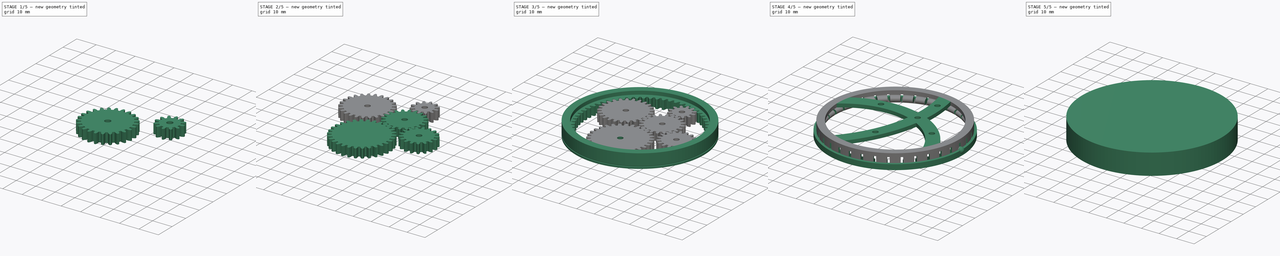
[diagram: build sequence overview — one tinted view per stage of 5, left to right]
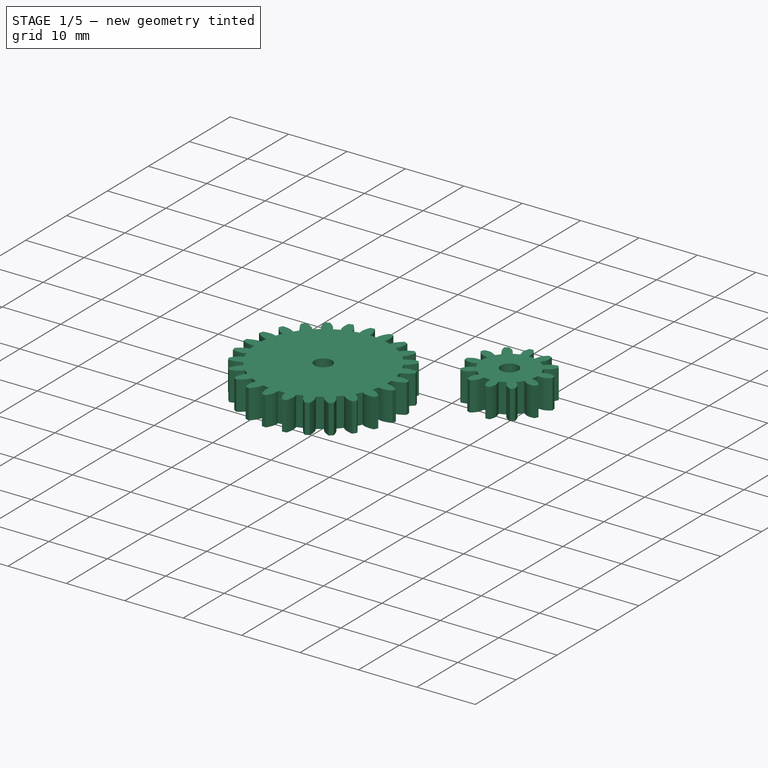
[diagram: stage 1 of 5 — iso view after this stage's code; geometry added in this stage tinted green]
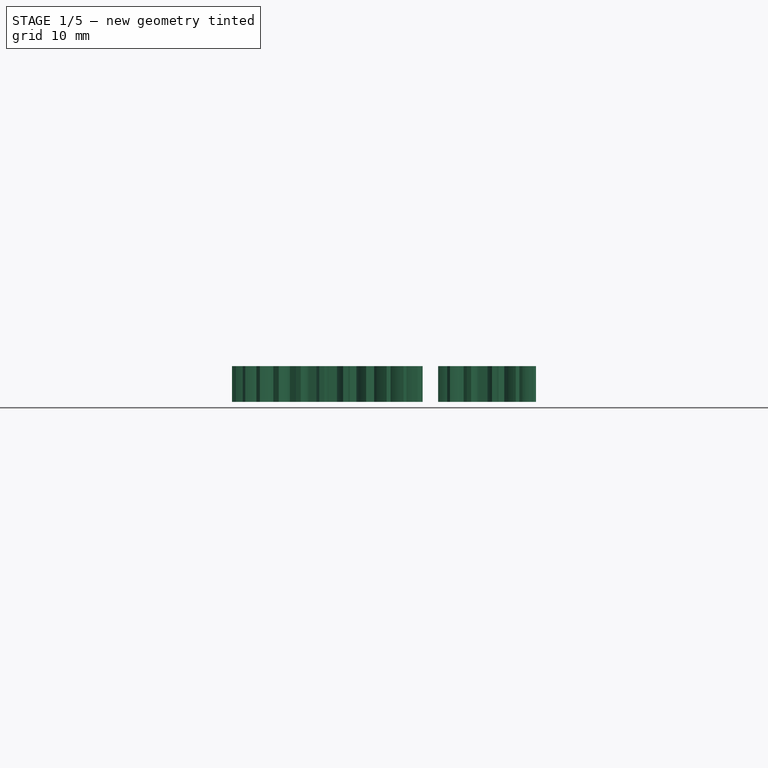
[diagram: stage 1 of 5 — front view after this stage's code; geometry added in this stage tinted green]
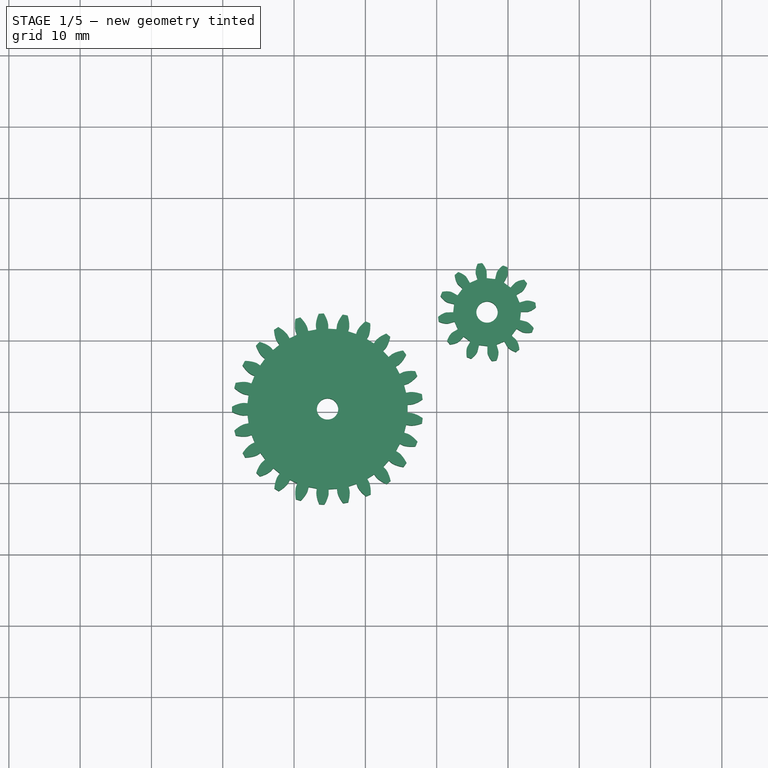
[diagram: stage 1 of 5 — top view after this stage's code; geometry added in this stage tinted green]
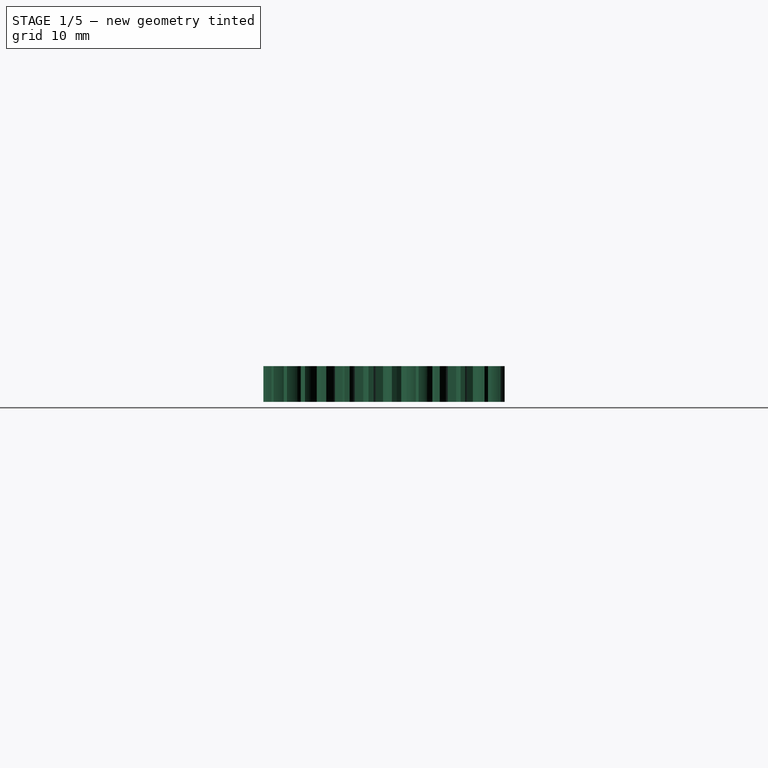
[diagram: stage 1 of 5 — right view after this stage's code; geometry added in this stage tinted green]
FCSTD DOCUMENT  (FreeCAD 1.0R39109 (Git))
Label: wdt2
License: All rights reserved
objects: Sketcher::SketchObject×10, PartDesign::Body×7, Part::FeaturePython×6, PartDesign::Revolution×6, Part::Cut×6, App::Link×5, PartDesign::PolarPattern×3, PartDesign::SubShapeBinder×2, PartDesign::Pad×2, PartDesign::Boolean×1, PartDesign::Groove×1, App::Part×1
note: 76 computed .brp shape members not serialized (recipe doc carries the construction recipe); baked Part::Feature solids carry a one-line shape summary decoded from their .brp

FEATURE [Part::FeaturePython] InvoluteGear003  # WARN: FeaturePython — macro-defined, semantics opaque (R4)
  AttacherType = Attacher::AttachEngine3D
  AttachmentOffset = pos=(0,0,0) rot=(0,0,1;0.146608rad)
  AttachmentSupport = -> [Sketch]
  MapMode = 11
  Placement = pos=(7.06377,23.9813,0) rot=(0,0,1;1.7174rad)
  angular_backlash = 0.95493
  backlash = 0.1
  beta = 0
  clearance = 0.25
  da = 13.8
  df = 9.5
  double_helix = false
  dw = 12
  head = -0.1
  head_fillet = 0
  height = 5
  module = 1
  num_teeth = 12
  numpoints = 20
  pressure_angle = 20
  properties_from_tool = false
  reversed_backlash = false
  root_fillet = 0
  shift = 0
  simple = false
  transverse_pitch = 3.14159
  traverse_module = 1
  undercut = false
  version = 1.3.0
  expr: angular_backlash = backlash / dw * 360 ° / pi
FEATURE [Part::FeaturePython] InvoluteGear004  # WARN: FeaturePython — macro-defined, semantics opaque (R4)
  AttacherType = Attacher::AttachEngine3D
  AttachmentOffset = pos=(0,0,0) rot=(0,0,1;0.06545rad)
  AttachmentSupport = -> [Sketch]
  MapMode = 11
  Placement = pos=(-15.307,10.3898,0) rot=(0,0,1;1.63625rad)
  angular_backlash = 0.458366
  backlash = 0.1
  beta = 0
  clearance = 0.25
  da = 26.8
  df = 22.5
  double_helix = false
  dw = 25
  head = -0.1
  head_fillet = 0
  height = 5
  module = 1
  num_teeth = 25
  numpoints = 20
  pressure_angle = 20
  properties_from_tool = false
  reversed_backlash = false
  root_fillet = 0
  shift = 0
  simple = false
  transverse_pitch = 3.14159
  traverse_module = 1
  undercut = false
  version = 1.3.0
  expr: angular_backlash = backlash / dw * 360 ° / pi
FEATURE [PartDesign::Body] Body005
  AllowCompound = true
  Group = -> [Sketch006,Revolution005,Sketch007,Groove,PolarPattern002,Sketch008,Binder,Pad]
  Origin = -> Origin006
  Tip = -> Pad
FEATURE [PartDesign::SubShapeBinder] Binder001
  BindCopyOnChange = 0
  BindMode = 0
  ClaimChildren = false
  Context = -> Part [Body006.Binder001.]
  Fuse = false
  MakeFace = false
  OffsetFill = false
  OffsetIntersection = false
  OffsetJoinType = 0
  OffsetOpenResult = false
  PartialLoad = false
  Relative = true
  Support = -> [Sketch]
  _Version = 2
FEATURE [Sketcher::SketchObject] Sketch009
  ArcFitTolerance = 1e-06
  AttachmentSupport = -> [XY_Plane007]
  ExternalGeometry = -> [Binder001]
  FullyConstrained = true
  MakeInternals = false
  MapMode = 5
  sketch-geometry (5):
    g0: Circle CenterX=-15.307 CenterY=10.3898 CenterZ=0 NormalX=0 NormalY=0 NormalZ=1 AngleXU=0 Radius=1.5
    g1: Circle CenterX=7.06377 CenterY=23.9813 CenterZ=0 NormalX=0 NormalY=0 NormalZ=1 AngleXU=0 Radius=1.5
    g2: Circle CenterX=7.06377 CenterY=7.98131 CenterZ=0 NormalX=0 NormalY=0 NormalZ=1 AngleXU=0 Radius=1.5
    g3: Circle CenterX=0 CenterY=-16 CenterZ=0 NormalX=0 NormalY=0 NormalZ=1 AngleXU=0 Radius=1.5
    g4: Circle CenterX=22.3707 CenterY=-2.40845 CenterZ=0 NormalX=0 NormalY=0 NormalZ=1 AngleXU=0 Radius=1.5
  constraints (10):
    c: Coincident(g0,g-3)
    c: Coincident(g1,g-4)
    c: Coincident(g2,g-5)
    c: Coincident(g3,g-7)
    c: Coincident(g4,g-6)
    c: Equal(g0,g1)
    c: Equal(g1,g2)
    c: Equal(g2,g3)
    c: Equal(g3,g4)
    c: Diameter(g4) = 3
FEATURE [PartDesign::Pad] Pad001
  Direction = (0,0,1)
  Length = 10
  Length2 = 10
  Profile = -> Sketch009
  ReferenceAxis = -> Sketch009 [N_Axis]
  Suppressed = false
  Type = 0
FEATURE [Part::Cut] Cut004
  Base = -> InvoluteGear003
  Tool = -> Link003
FEATURE [Part::Cut] Cut005
  Base = -> InvoluteGear004
  Tool = -> Link004
FEATURE [App::Part] Part
  Group = -> [Sketch,Body,InternalInvoluteGear,Cut,Body006,InvoluteGear,Link,Cut001,InvoluteGear001,Link001,Cut002,Link002,InvoluteGear002,Cut003,InvoluteGear003,Link003,Cut004,Link004,InvoluteGear004,Cut005]
  Origin = -> Origin
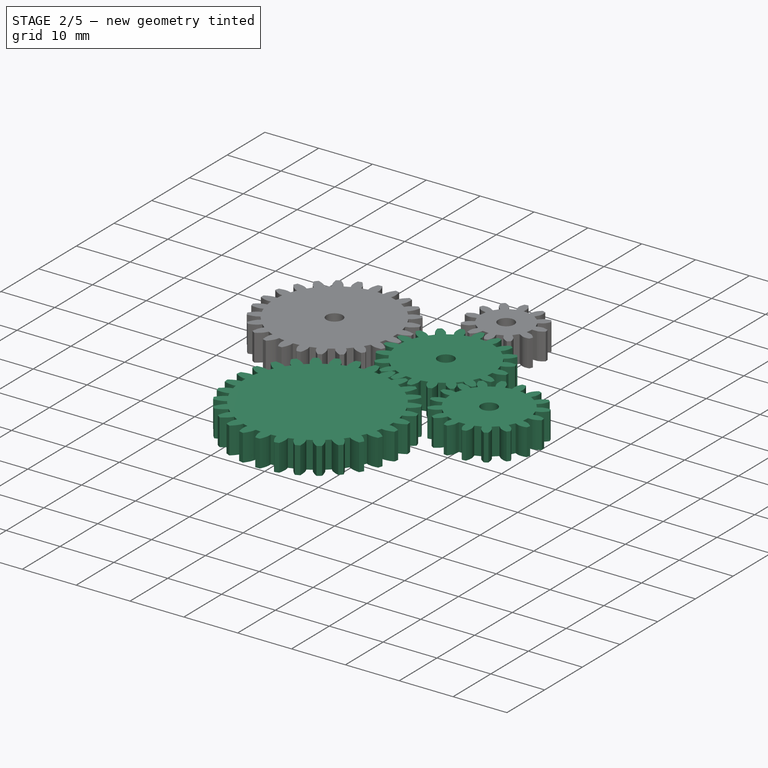
[diagram: stage 2 of 5 — iso view after this stage's code; geometry added in this stage tinted green]
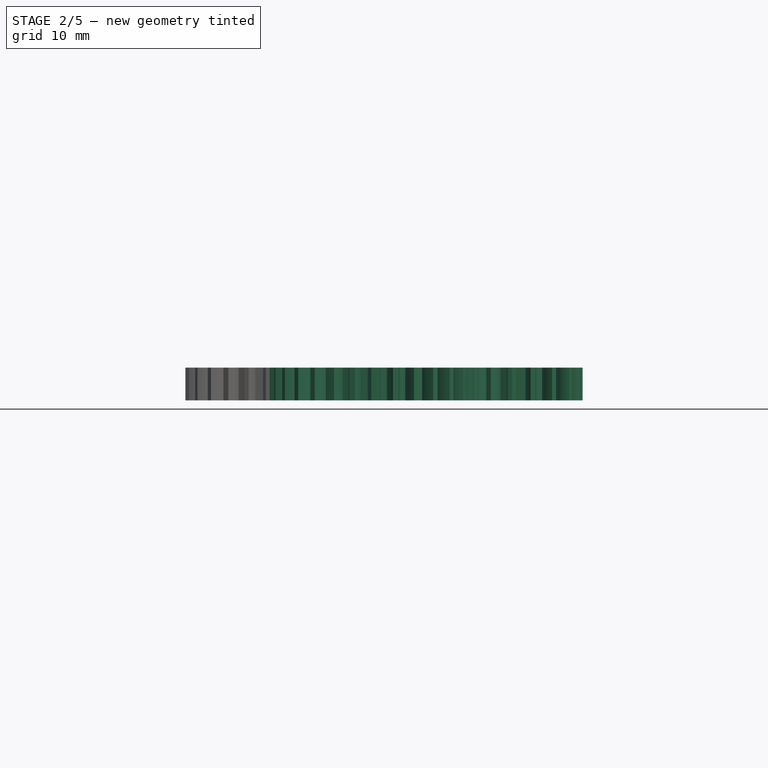
[diagram: stage 2 of 5 — front view after this stage's code; geometry added in this stage tinted green]
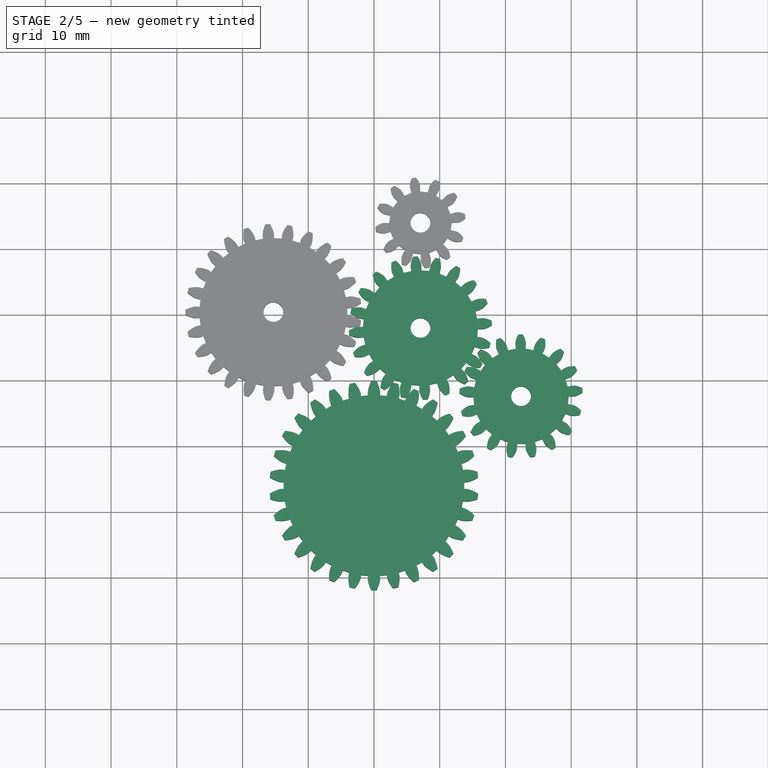
[diagram: stage 2 of 5 — top view after this stage's code; geometry added in this stage tinted green]
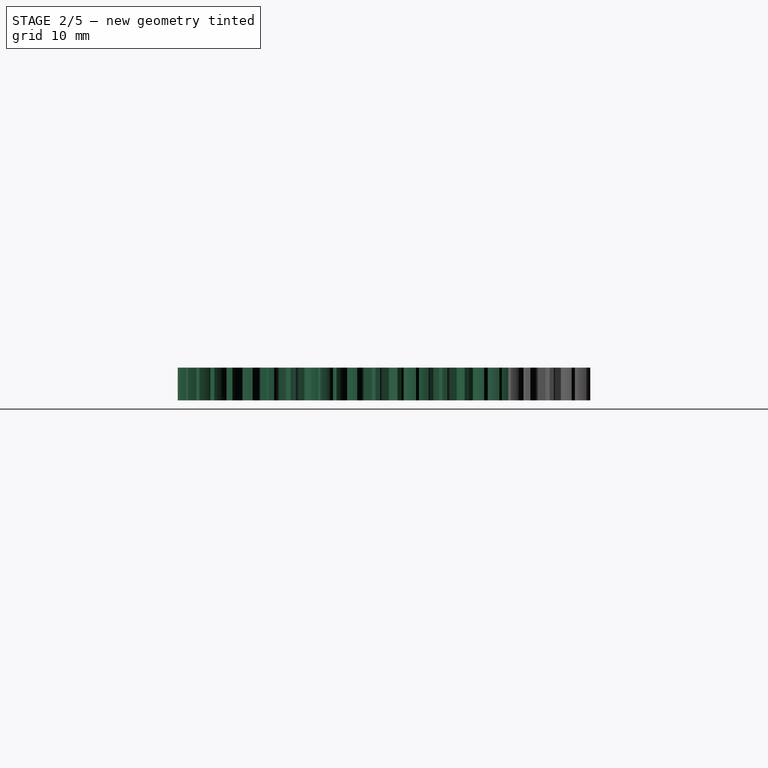
[diagram: stage 2 of 5 — right view after this stage's code; geometry added in this stage tinted green]
FEATURE [Part::FeaturePython] InvoluteGear  # WARN: FeaturePython — macro-defined, semantics opaque (R4)
  AttacherType = Attacher::AttachEngine3D
  AttachmentSupport = -> [Sketch]
  MapMode = 11
  Placement = pos=(0,-16,0) rot=(0,0,1;1.5708rad)
  angular_backlash = 0
  backlash = 0
  beta = 0
  clearance = 0.25
  da = 31.8
  df = 27.5
  double_helix = false
  dw = 30
  head = -0.1
  head_fillet = 0
  height = 5
  module = 1
  num_teeth = 30
  numpoints = 20
  pressure_angle = 20
  properties_from_tool = false
  reversed_backlash = false
  root_fillet = 0
  shift = 0
  simple = false
  transverse_pitch = 3.14159
  traverse_module = 1
  undercut = false
  version = 1.3.0
  expr: angular_backlash = backlash / dw * 360 ° / pi
FEATURE [Part::FeaturePython] InvoluteGear001  # WARN: FeaturePython — macro-defined, semantics opaque (R4)
  AttacherType = Attacher::AttachEngine3D
  AttachmentOffset = pos=(0,0,0) rot=(0,0,1;0.069813rad)
  AttachmentSupport = -> [Sketch]
  MapMode = 11
  Placement = pos=(7.06377,7.98131,0) rot=(0,0,1;1.64061rad)
  angular_backlash = 0.572958
  backlash = 0.1
  beta = 0
  clearance = 0.25
  da = 21.8
  df = 17.5
  double_helix = false
  dw = 20
  head = -0.1
  head_fillet = 0
  height = 5
  module = 1
  num_teeth = 20
  numpoints = 20
  pressure_angle = 20
  properties_from_tool = false
  reversed_backlash = false
  root_fillet = 0
  shift = 0
  simple = false
  transverse_pitch = 3.14159
  traverse_module = 1
  undercut = false
  version = 1.3.0
  expr: angular_backlash = backlash / dw * 360 ° / pi
FEATURE [Part::FeaturePython] InvoluteGear002  # WARN: FeaturePython — macro-defined, semantics opaque (R4)
  AttacherType = Attacher::AttachEngine3D
  AttachmentOffset = pos=(0,0,0) rot=(0,0,1;0.006981rad)
  AttachmentSupport = -> [Sketch]
  MapMode = 11
  Placement = pos=(22.3707,-2.40845,0) rot=(0,0,1;1.57778rad)
  angular_backlash = 0.674068
  backlash = 0.1
  beta = 0
  clearance = 0.25
  da = 18.8
  df = 14.5
  double_helix = false
  dw = 17
  head = -0.1
  head_fillet = 0
  height = 5
  module = 1
  num_teeth = 17
  numpoints = 20
  pressure_angle = 20
  properties_from_tool = false
  reversed_backlash = false
  root_fillet = 0
  shift = 0
  simple = false
  transverse_pitch = 3.14159
  traverse_module = 1
  undercut = false
  version = 1.3.0
  expr: angular_backlash = backlash / dw * 360 ° / pi
FEATURE [Part::Cut] Cut002
  Base = -> InvoluteGear001
  Tool = -> Link001
FEATURE [Part::Cut] Cut003
  Base = -> InvoluteGear002
  Tool = -> Link002
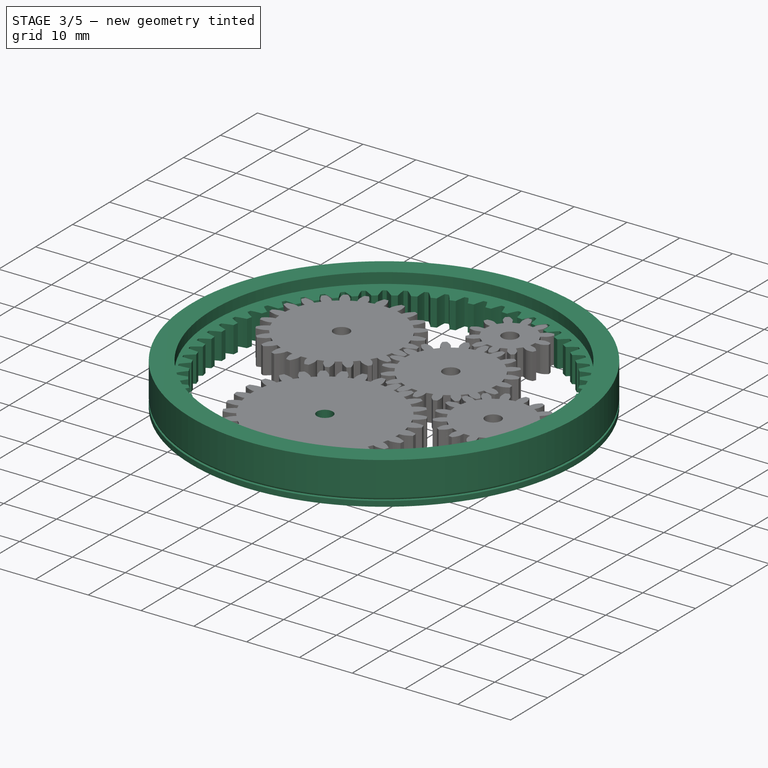
[diagram: stage 3 of 5 — iso view after this stage's code; geometry added in this stage tinted green]
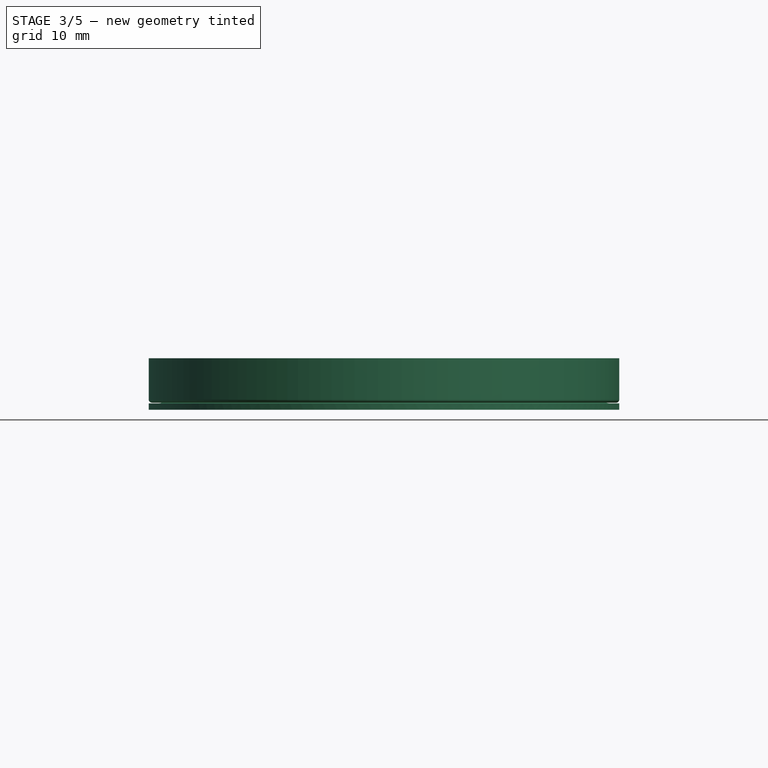
[diagram: stage 3 of 5 — front view after this stage's code; geometry added in this stage tinted green]
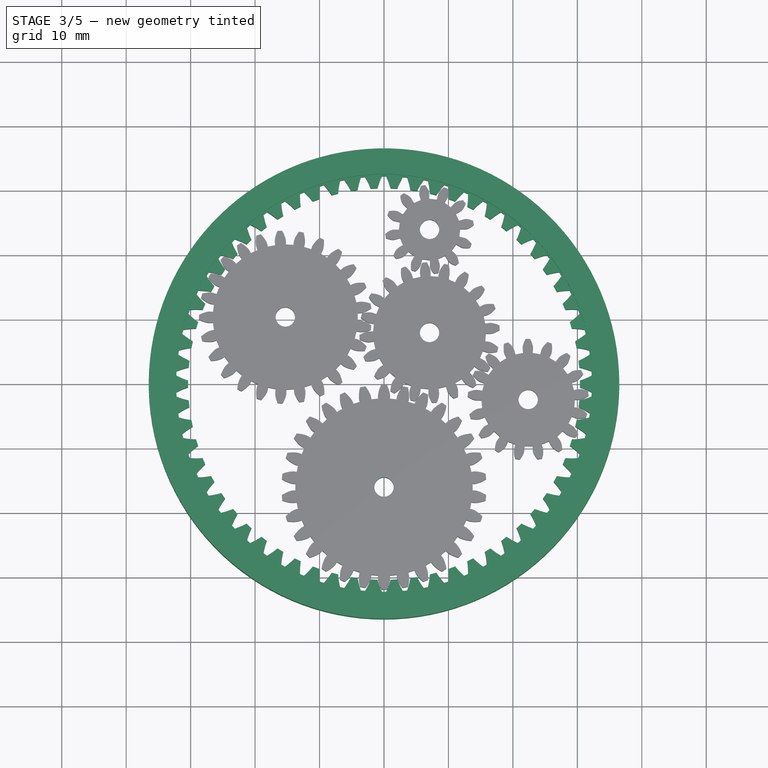
[diagram: stage 3 of 5 — top view after this stage's code; geometry added in this stage tinted green]
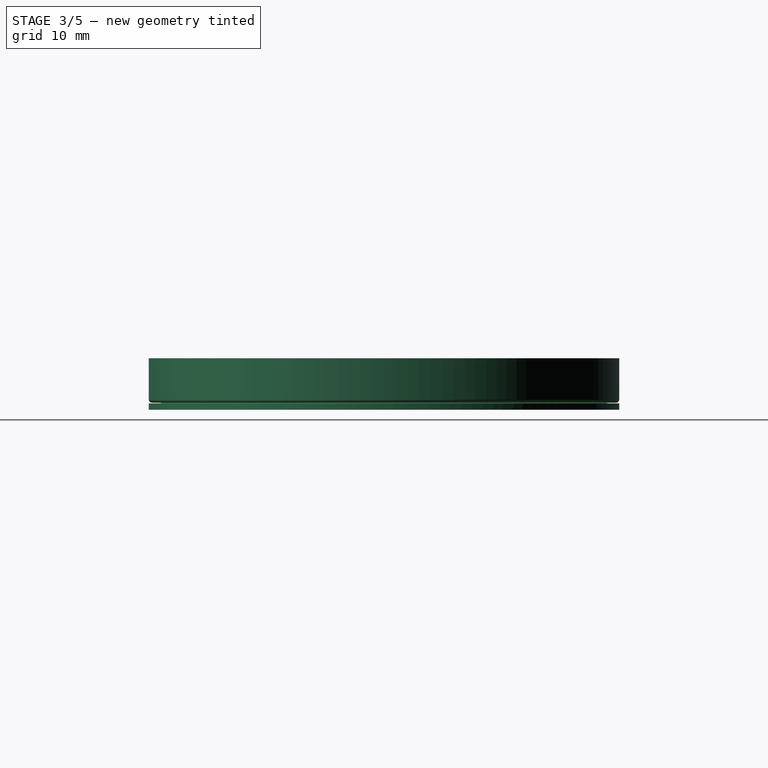
[diagram: stage 3 of 5 — right view after this stage's code; geometry added in this stage tinted green]
FEATURE [Sketcher::SketchObject] Sketch
  ArcFitTolerance = 1e-06
  AttachmentSupport = -> [XY_Plane]
  FullyConstrained = true
  MakeInternals = false
  MapMode = 5
  sketch-geometry (7):
    g0: Circle CenterX=0 CenterY=0 CenterZ=0 NormalX=0 NormalY=0 NormalZ=1 AngleXU=0 Radius=31
    g1: Circle CenterX=0 CenterY=-16 CenterZ=0 NormalX=0 NormalY=0 NormalZ=1 AngleXU=0 Radius=15
    g2: Circle CenterX=7.06377 CenterY=7.98131 CenterZ=0 NormalX=0 NormalY=0 NormalZ=1 AngleXU=0 Radius=10
    g3: LineSegment [constr] StartX=7.06377 StartY=7.98131 StartZ=0 EndX=0 EndY=-16 EndZ=0
    g4: Circle CenterX=7.06377 CenterY=23.9813 CenterZ=0 NormalX=0 NormalY=0 NormalZ=1 AngleXU=0 Radius=6
    g5: Circle CenterX=22.3707 CenterY=-2.40845 CenterZ=0 NormalX=0 NormalY=0 NormalZ=1 AngleXU=0 Radius=8.5
    g6: Circle CenterX=-15.307 CenterY=10.3898 CenterZ=0 NormalX=0 NormalY=0 NormalZ=1 AngleXU=0 Radius=12.5
  constraints (19):
    c: Coincident(g0,g-1)
    c: Diameter(g0) = 62
    c: PointOnObject(g1,g-2)
    c: Tangent(g1,g0)
    c: Diameter(g1) = 30
    c: Tangent(g2,g1)
    c: Diameter(g2) = 20
    c: Coincident(g3,g2)
    c: Coincident(g3,g1)
    c: Angle(g-2,g3) = 2.85514
    c: Diameter(g4) = 12
    c: Tangent(g4,g2)
    c: Tangent(g4,g0)
    c: Diameter(g5) = 17
    c: Tangent(g5,g0)
    c: Tangent(g5,g2)
    c: Diameter(g6) = 25
    c: Tangent(g6,g2)
    c: Tangent(g6,g0)
FEATURE [Part::FeaturePython] InternalInvoluteGear  # WARN: FeaturePython — macro-defined, semantics opaque (R4)
  AttacherType = Attacher::AttachEngine3D
  AttachmentSupport = -> [Sketch]
  MapMode = 11
  Placement = pos=(0,0,0) rot=(0,0,1;1.5708rad)
  angular_backlash = 0.184825
  backlash = 0.1
  beta = 0
  clearance = 0.25
  da = 60.8
  df = 64.5
  double_helix = false
  dw = 62
  head = -0.4
  head_fillet = 0
  height = 5
  module = 1
  num_teeth = 62
  numpoints = 20
  outside_diameter = 73
  pressure_angle = 20
  properties_from_tool = false
  reversed_backlash = false
  root_fillet = 0
  shift = 0
  simple = false
  thickness = 5.5
  transverse_pitch = 3.14159
  version = 1.3.0
  expr: angular_backlash = backlash / dw * 360 ° / pi
FEATURE [Sketcher::SketchObject] Sketch001
  ArcFitTolerance = 1e-06
  AttachmentSupport = -> [XZ_Plane001]
  FullyConstrained = true
  MakeInternals = false
  MapMode = 5
  Placement = pos=(0,0,0) rot=(1,0,0;1.5708rad)
  sketch-geometry (8):
    g0: Circle [constr] CenterX=35 CenterY=2.5 CenterZ=0 NormalX=0 NormalY=0 NormalZ=1 AngleXU=0 Radius=1.5
    g1: ArcOfCircle CenterX=35 CenterY=2.5 CenterZ=0 NormalX=0 NormalY=0 NormalZ=1 AngleXU=0 Radius=1.5 StartAngle=1.82348 EndAngle=4.71239
    g2: ArcOfCircle CenterX=34.5 CenterY=4.43649 CenterZ=0 NormalX=0 NormalY=0 NormalZ=1 AngleXU=0 Radius=0.5 StartAngle=4.96507 EndAngle=6.28319
    g3: LineSegment StartX=35 StartY=4.43649 StartZ=0 EndX=35 EndY=4.5 EndZ=0
    g4: ArcOfCircle CenterX=34.5 CenterY=4.5 CenterZ=0 NormalX=0 NormalY=0 NormalZ=1 AngleXU=0 Radius=0.5 StartAngle=0 EndAngle=1.5708
    g5: LineSegment StartX=34.5 StartY=5 StartZ=0 EndX=36.5 EndY=5 EndZ=0
    g6: LineSegment StartX=36.5 StartY=5 StartZ=0 EndX=36.5 EndY=1 EndZ=0
    g7: LineSegment StartX=36.5 StartY=1 StartZ=0 EndX=35 EndY=1 EndZ=0
  constraints (23):
    c: Diameter(g0) = 3
    c: Distance(g0,g-2) = 35
    c: DistanceY(g-1,g0) = 2.5
    c: Coincident(g1,g0)
    c: PointOnObject(g1,g0)
    c: Vertical(g3)
    c: Tangent(g2,g1) = 1.5708
    c: Tangent(g3,g2) = -1.5708
    c: Vertical(g2,g1)
    c: Radius(g2) = 0.5
    c: Tangent(g4,g3) = -1.5708
    c: Vertical(g4,g4)
    c: Radius(g4) = 0.5
    c: DistanceY(g-1,g4) = 5
    c: Coincident(g5,g4)
    c: Coincident(g6,g5)
    c: Vertical(g6)
    c: Coincident(g7,g6)
    c: Coincident(g7,g1)
    c: Horizontal(g7)
    c: Horizontal(g5)
    c: DistanceX(g5,g5) = 2
    c: Vertical(g1,g0)
FEATURE [PartDesign::Revolution] Revolution
  Angle = 360
  Angle2 = 60
  Axis = (0,2e-16,1)
  Base = (0,0,0)
  Placement = pos=(0,0,0) rot=(1,0,0;1.5708rad)
  Profile = -> Sketch001
  ReferenceAxis = -> Sketch001 [V_Axis]
  Reversed = true
  Suppressed = false
  Type = 0
FEATURE [PartDesign::Body] Body
  AllowCompound = true
  Group = -> [Sketch001,Revolution]
  Origin = -> Origin001
  Tip = -> Revolution
FEATURE [Part::Cut] Cut
  Base = -> InternalInvoluteGear
  Tool = -> Body
FEATURE [PartDesign::Body] Body003
  AllowCompound = true
  Group = -> [Sketch004,Revolution003,Boolean]
  Origin = -> Origin004
  Tip = -> Boolean
FEATURE [Sketcher::SketchObject] Sketch006
  ArcFitTolerance = 1e-06
  AttachmentSupport = -> [XZ_Plane006]
  FullyConstrained = true
  MakeInternals = false
  MapMode = 5
  Placement = pos=(0,0,0) rot=(1,0,0;1.5708rad)
  sketch-geometry (10):
    g0: LineSegment StartX=36.5 StartY=1.6 StartZ=0 EndX=36.5 EndY=8 EndZ=0
    g1: LineSegment StartX=36.5 StartY=8 StartZ=0 EndX=32.5 EndY=8 EndZ=0
    g2: LineSegment StartX=32.5 StartY=8 StartZ=0 EndX=32.5 EndY=6 EndZ=0
    g3: ArcOfCircle CenterX=34.9 CenterY=2.5 CenterZ=0 NormalX=0 NormalY=0 NormalZ=1 AngleXU=0 Radius=1.4 StartAngle=1.51814 EndAngle=4.71239
    g4: LineSegment StartX=34.9 StartY=1.1 StartZ=0 EndX=36 EndY=1.1 EndZ=0
    g5: ArcOfCircle CenterX=36 CenterY=1.6 CenterZ=0 NormalX=0 NormalY=0 NormalZ=1 AngleXU=0 Radius=0.5 StartAngle=4.71239 EndAngle=6.28319
    g6: ArcOfCircle CenterX=35 CenterY=4.39737 CenterZ=0 NormalX=0 NormalY=0 NormalZ=1 AngleXU=0 Radius=0.5 StartAngle=4.65973 EndAngle=6.28319
    g7: LineSegment StartX=35.5 StartY=4.39737 StartZ=0 EndX=35.5 EndY=5.5 EndZ=0
    g8: ArcOfCircle CenterX=35 CenterY=5.5 CenterZ=0 NormalX=0 NormalY=0 NormalZ=1 AngleXU=0 Radius=0.5 StartAngle=2e-16 EndAngle=1.5708
    g9: LineSegment StartX=32.5 StartY=6 StartZ=0 EndX=35 EndY=6 EndZ=0
  constraints (29):
    c: Vertical(g0)
    c: Coincident(g0,g1)
    c: Horizontal(g1)
    c: Coincident(g1,g2)
    c: Vertical(g2)
    c: DistanceY(g-1,g3) = 2.5
    c: Vertical(g3,g3)
    c: Radius(g3) = 1.4
    c: Coincident(g4,g3)
    c: Horizontal(g4)
    c: Tangent(g5,g4) = -1.5708
    c: Tangent(g5,g0) = -1.5708
    c: Radius(g5) = 0.5
    c: DistanceX(g-1,g0) = 36.5
    c: DistanceX(g-1,g3) = 34.9
    c: DistanceY(g-1,g2) = 6
    c: Tangent(g6,g3) = 1.5708
    c: Radius(g6) = 0.5
    c: Distance(g6,g0) = 1
    c: Vertical(g7)
    c: Tangent(g7,g6) = -1.5708
    c: Tangent(g8,g7) = -1.5708
    c: Coincident(g9,g2)
    c: Horizontal(g9)
    c: Tangent(g9,g8) = 1.5708
    c: Radius(g8) = 0.5
    c: Distance(g2,g2) = 2
    c: DistanceX(g1,g1) = 4
    c: DistanceX(g-1,g1) = 32.5
FEATURE [PartDesign::Revolution] Revolution005
  Angle = 360
  Angle2 = 60
  Axis = (0,2e-16,1)
  Base = (0,0,0)
  Placement = pos=(0,0,0) rot=(1,0,0;1.5708rad)
  Profile = -> Sketch006
  ReferenceAxis = -> Sketch006 [V_Axis]
  Reversed = true
  Suppressed = false
  Type = 0
FEATURE [PartDesign::Body] Body006
  AllowCompound = true
  Group = -> [Sketch009,Binder001,Pad001]
  Origin = -> Origin007
  Tip = -> Pad001
FEATURE [App::Link] Link  label="Body007"
  LinkedObject = -> Body006
FEATURE [App::Link] Link001  label="Body008"
  LinkedObject = -> Body006
FEATURE [App::Link] Link002  label="Body009"
  LinkedObject = -> Body006
FEATURE [App::Link] Link003  label="Body010"
  LinkedObject = -> Body006
FEATURE [App::Link] Link004  label="Body011"
  LinkedObject = -> Body006
FEATURE [Part::Cut] Cut001
  Base = -> InvoluteGear
  Tool = -> Link
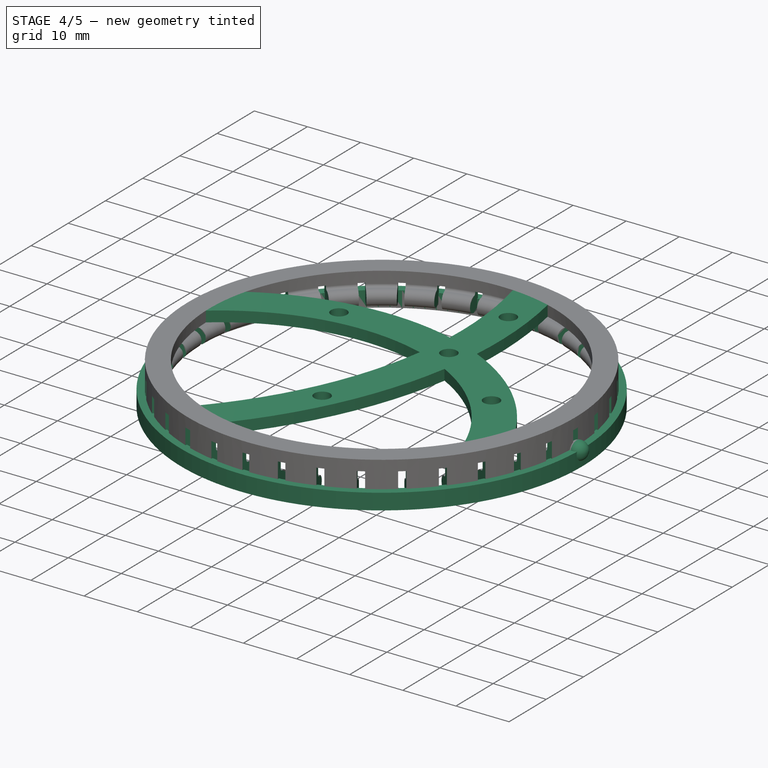
[diagram: stage 4 of 5 — iso view after this stage's code; geometry added in this stage tinted green]
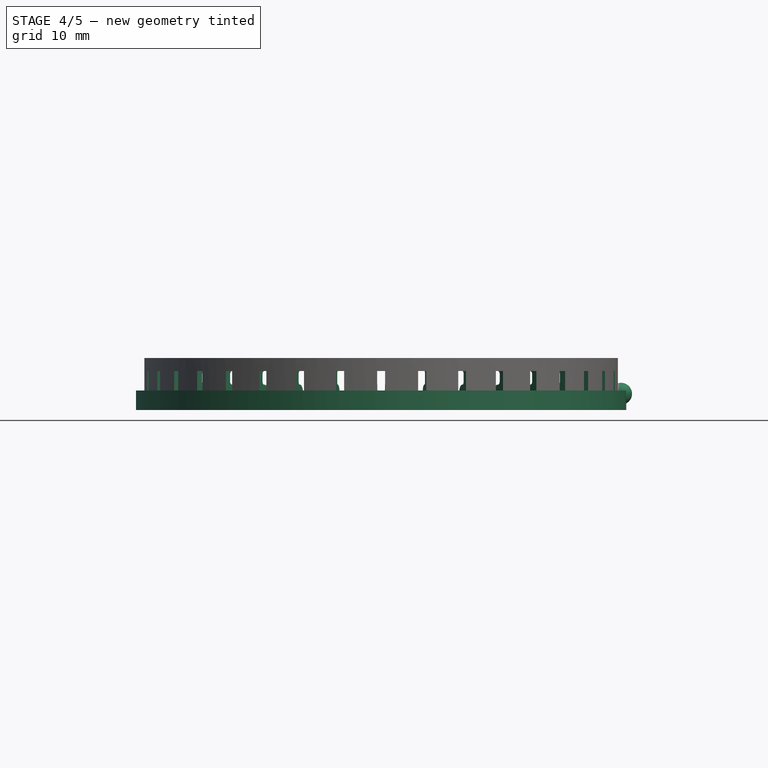
[diagram: stage 4 of 5 — front view after this stage's code; geometry added in this stage tinted green]
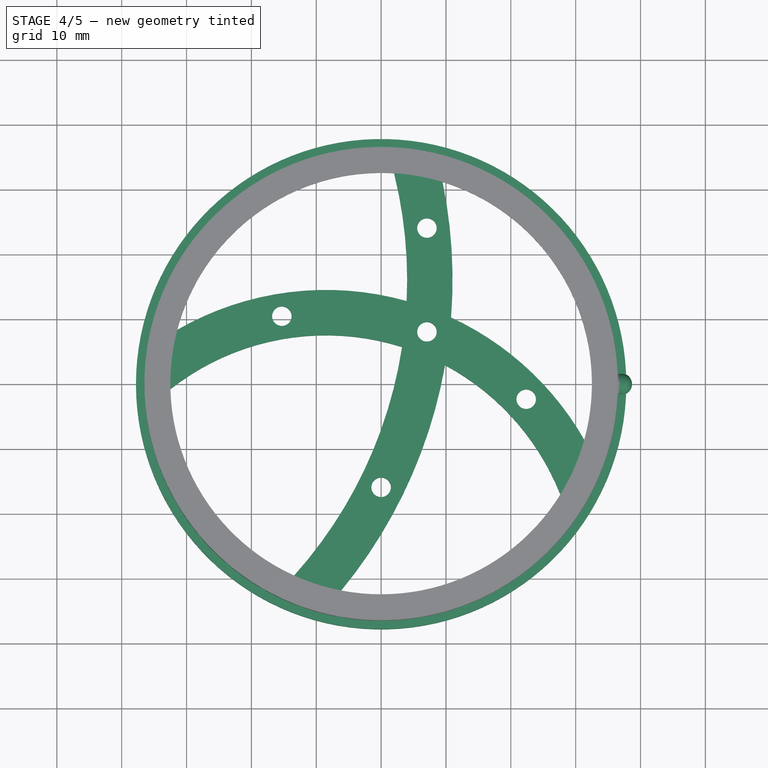
[diagram: stage 4 of 5 — top view after this stage's code; geometry added in this stage tinted green]
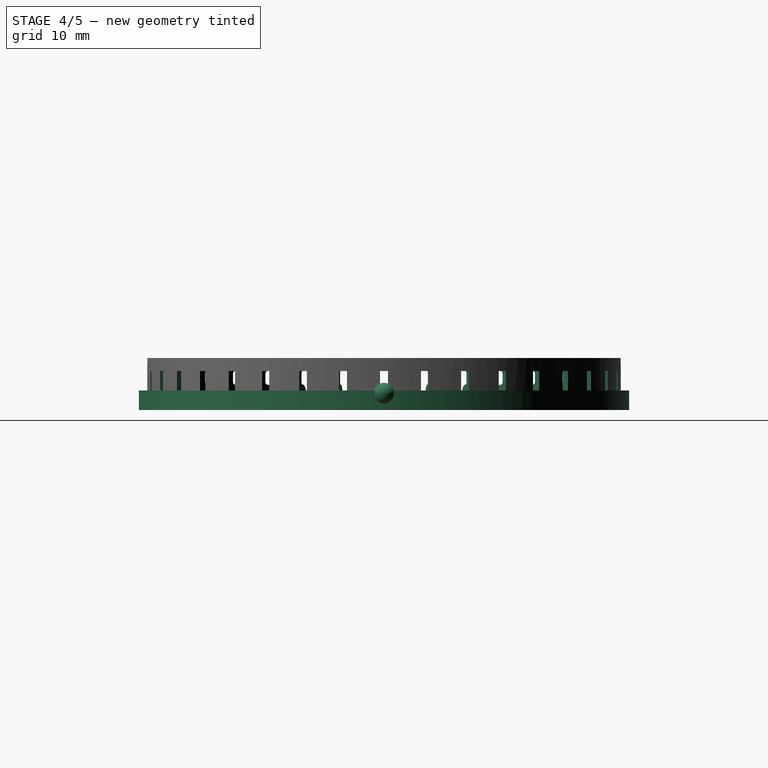
[diagram: stage 4 of 5 — right view after this stage's code; geometry added in this stage tinted green]
FEATURE [Sketcher::SketchObject] Sketch002
  ArcFitTolerance = 1e-06
  AttachmentOffset = pos=(37,0,0) rot=(0,0,1;0rad)
  AttachmentSupport = -> [XZ_Plane002]
  FullyConstrained = true
  MakeInternals = false
  MapMode = 5
  Placement = pos=(37,0,0) rot=(1,0,0;1.5708rad)
  sketch-geometry (2):
    g0: ArcOfCircle CenterX=0 CenterY=2.5 CenterZ=0 NormalX=0 NormalY=0 NormalZ=1 AngleXU=0 Radius=1.6875 StartAngle=4.71239 EndAngle=7.85398
    g1: LineSegment StartX=0 StartY=4.1875 StartZ=0 EndX=0 EndY=0.8125 EndZ=0
  constraints (7):
    c: Coincident(g1,g0)
    c: Coincident(g1,g0)
    c: Vertical(g1)
    c: PointOnObject(g0,g1)
    c: Distance(g0,g-1) = 2.5
    c: PointOnObject(g0,g-2)
    c: Radius(g0) = 1.6875
FEATURE [PartDesign::Revolution] Revolution001
  Angle = 360
  Angle2 = 60
  Axis = (0,2e-16,1)
  Base = (37,0,0)
  Placement = pos=(0,0,0) rot=(1,0,0;1.5708rad)
  Profile = -> Sketch002
  ReferenceAxis = -> Sketch002 [V_Axis]
  Reversed = true
  Suppressed = false
  Type = 0
FEATURE [PartDesign::Body] Body002
  AllowCompound = true
  Group = -> [Sketch003,Revolution002]
  Origin = -> Origin003
  Tip = -> Revolution002
FEATURE [Sketcher::SketchObject] Sketch004
  ArcFitTolerance = 1e-06
  AttachmentSupport = -> [XZ_Plane004]
  FullyConstrained = true
  MakeInternals = false
  MapMode = 5
  Placement = pos=(0,0,0) rot=(1,0,0;1.5708rad)
  sketch-geometry (4):
    g0: LineSegment StartX=36.2 StartY=3 StartZ=0 EndX=36.2 EndY=0 EndZ=0
    g1: LineSegment StartX=36.2 StartY=0 StartZ=0 EndX=37.8 EndY=0 EndZ=0
    g2: LineSegment StartX=37.8 StartY=0 StartZ=0 EndX=37.8 EndY=3 EndZ=0
    g3: LineSegment StartX=37.8 StartY=3 StartZ=0 EndX=36.2 EndY=3 EndZ=0
  constraints (12):
    c: Coincident(g0,g1)
    c: Coincident(g1,g2)
    c: Coincident(g2,g3)
    c: Coincident(g3,g0)
    c: Vertical(g0)
    c: Vertical(g2)
    c: Horizontal(g1)
    c: Horizontal(g3)
    c: PointOnObject(g1,g-1)
    c: DistanceX(g-1,g0) = 36.2
    c: DistanceX(g-1,g1) = 37.8
    c: DistanceY(g2,g2) = 3
FEATURE [PartDesign::Revolution] Revolution003
  Angle = 360
  Angle2 = 60
  Axis = (0,2e-16,1)
  Base = (0,0,0)
  Placement = pos=(0,0,0) rot=(1,0,0;1.5708rad)
  Profile = -> Sketch004
  ReferenceAxis = -> Sketch004 [V_Axis]
  Reversed = true
  Suppressed = false
  Type = 0
FEATURE [Sketcher::SketchObject] Sketch007
  ArcFitTolerance = 1e-06
  AttachmentSupport = -> [XZ_Plane006]
  ExternalGeometry = -> [Sketch006]
  FullyConstrained = true
  MakeInternals = false
  MapMode = 5
  Placement = pos=(0,0,0) rot=(1,0,0;1.5708rad)
  sketch-geometry (4):
    g0: LineSegment StartX=32.5 StartY=6 StartZ=0 EndX=32.5 EndY=0 EndZ=0
    g1: LineSegment StartX=32.5 StartY=0 StartZ=0 EndX=36.5 EndY=0 EndZ=0
    g2: LineSegment StartX=36.5 StartY=0 StartZ=0 EndX=36.5 EndY=6 EndZ=0
    g3: LineSegment StartX=36.5 StartY=6 StartZ=0 EndX=32.5 EndY=6 EndZ=0
  constraints (11):
    c: Coincident(g0,g1)
    c: Coincident(g1,g2)
    c: Coincident(g2,g3)
    c: Coincident(g3,g0)
    c: Vertical(g0)
    c: Vertical(g2)
    c: Horizontal(g1)
    c: Horizontal(g3)
    c: PointOnObject(g1,g-1)
    c: Coincident(g0,g-3)
    c: Vertical(g2,g-4)
FEATURE [PartDesign::Groove] Groove
  Angle = 2
  Angle2 = 60
  Axis = (0,2e-16,1)
  Base = (0,0,0)
  BaseFeature = -> Revolution005
  Midplane = true
  Placement = pos=(0,0,0) rot=(1,0,0;1.5708rad)
  Profile = -> Sketch007
  ReferenceAxis = -> Sketch007 [V_Axis]
  Suppressed = false
  Type = 0
FEATURE [PartDesign::PolarPattern] PolarPattern002
  Angle = 360
  Axis = -> Z_Axis006
  BaseFeature = -> Groove
  Mode = 0
  Occurrences = 36
  Offset = 120
  Originals = -> [Groove]
  Placement = pos=(0,0,0) rot=(1,0,0;1.5708rad)
  Suppressed = false
  TransformMode = 0
FEATURE [PartDesign::SubShapeBinder] Binder
  BindCopyOnChange = 0
  BindMode = 0
  ClaimChildren = false
  Context = -> Body005 [Binder.]
  Fuse = false
  MakeFace = false
  OffsetFill = false
  OffsetIntersection = false
  OffsetJoinType = 0
  OffsetOpenResult = false
  PartialLoad = false
  Relative = true
  Support = -> [Part[Sketch.]]
  _Version = 2
FEATURE [Sketcher::SketchObject] Sketch008
  ArcFitTolerance = 1e-06
  AttachmentOffset = pos=(0,0,6) rot=(0,0,1;0rad)
  AttachmentSupport = -> [XY_Plane006]
  ExternalGeometry = -> [Binder]
  FullyConstrained = true
  MakeInternals = false
  MapMode = 5
  Placement = pos=(0,0,6) rot=(0,0,1;0rad)
  sketch-geometry (28):
    g0: Circle CenterX=-15.307 CenterY=10.3898 CenterZ=0 NormalX=0 NormalY=0 NormalZ=1 AngleXU=0 Radius=1.5
    g1: Circle CenterX=7.06377 CenterY=23.9813 CenterZ=0 NormalX=0 NormalY=0 NormalZ=1 AngleXU=0 Radius=1.5
    g2: Circle CenterX=7.06377 CenterY=7.98131 CenterZ=0 NormalX=0 NormalY=0 NormalZ=1 AngleXU=0 Radius=1.5
    g3: Circle CenterX=22.3707 CenterY=-2.40845 CenterZ=0 NormalX=0 NormalY=0 NormalZ=1 AngleXU=0 Radius=1.5
    g4: Circle CenterX=0 CenterY=-16 CenterZ=0 NormalX=0 NormalY=0 NormalZ=1 AngleXU=0 Radius=1.5
    g5: Circle [constr] CenterX=0 CenterY=0 CenterZ=0 NormalX=0 NormalY=0 NormalZ=1 AngleXU=0 Radius=32.5
    g6: ArcOfCircle [constr] CenterX=-8.4918 CenterY=-31.4069 CenterZ=0 NormalX=0 NormalY=0 NormalZ=1 AngleXU=0 Radius=42.3486 StartAngle=0.445679 EndAngle=2.16778
    g7: ArcOfCircle [constr] CenterX=-64.3359 CenterY=15.9813 CenterZ=0 NormalX=0 NormalY=0 NormalZ=1 AngleXU=0 Radius=71.8464 StartAngle=5.57145 EndAngle=6.50797
    g8: ArcOfCircle [constr] CenterX=-8.4918 CenterY=-31.4069 CenterZ=0 NormalX=0 NormalY=0 NormalZ=1 AngleXU=0 Radius=45.8486 StartAngle=0.445679 EndAngle=2.16778
    g9: ArcOfCircle [constr] CenterX=-32.2981 CenterY=3.61689 CenterZ=0 NormalX=0 NormalY=0 NormalZ=1 AngleXU=0 Radius=3.5 StartAngle=2.16778 EndAngle=5.30937
    g10: ArcOfCircle [constr] CenterX=29.7201 CenterY=-13.1516 CenterZ=0 NormalX=0 NormalY=0 NormalZ=1 AngleXU=0 Radius=3.5 StartAngle=3.58727 EndAngle=6.72886
    g11: ArcOfCircle [constr] CenterX=-8.4918 CenterY=-31.4069 CenterZ=0 NormalX=0 NormalY=0 NormalZ=1 AngleXU=0 Radius=38.8486 StartAngle=0.445679 EndAngle=2.16778
    g12: ArcOfCircle [constr] CenterX=-64.3359 CenterY=15.9813 CenterZ=0 NormalX=0 NormalY=0 NormalZ=1 AngleXU=0 Radius=75.3464 StartAngle=5.57145 EndAngle=6.50797
    g13: ArcOfCircle [constr] CenterX=5.70303 CenterY=31.9957 CenterZ=0 NormalX=0 NormalY=0 NormalZ=1 AngleXU=0 Radius=3.5 StartAngle=0.224786 EndAngle=3.36638
    g14: ArcOfCircle [constr] CenterX=-9.93178 CenterY=-30.9453 CenterZ=0 NormalX=0 NormalY=0 NormalZ=1 AngleXU=0 Radius=3.5 StartAngle=2.42985 EndAngle=5.57145
    g15: ArcOfCircle [constr] CenterX=-64.3359 CenterY=15.9813 CenterZ=0 NormalX=0 NormalY=0 NormalZ=1 AngleXU=0 Radius=68.3464 StartAngle=5.57145 EndAngle=6.50797
    g16: ArcOfCircle CenterX=-8.4918 CenterY=-31.4069 CenterZ=0 NormalX=0 NormalY=0 NormalZ=1 AngleXU=0 Radius=38.8486 StartAngle=0.376844 EndAngle=1.07894
    g17: ArcOfCircle CenterX=-8.4918 CenterY=-31.4069 CenterZ=0 NormalX=0 NormalY=0 NormalZ=1 AngleXU=0 Radius=45.8486 StartAngle=0.518874 EndAngle=1.13679
    g18: ArcOfCircle CenterX=-64.3359 CenterY=15.9813 CenterZ=0 NormalX=0 NormalY=0 NormalZ=1 AngleXU=0 Radius=75.3464 StartAngle=6.20626 EndAngle=6.48503
    g19: ArcOfCircle CenterX=-64.3359 CenterY=15.9813 CenterZ=0 NormalX=0 NormalY=0 NormalZ=1 AngleXU=0 Radius=75.3464 StartAngle=5.59439 EndAngle=6.10783
    g20: ArcOfCircle CenterX=-64.3359 CenterY=15.9813 CenterZ=0 NormalX=0 NormalY=0 NormalZ=1 AngleXU=0 Radius=68.3464 StartAngle=5.55305 EndAngle=6.1312
    g21: ArcOfCircle CenterX=-64.3359 CenterY=15.9813 CenterZ=0 NormalX=0 NormalY=0 NormalZ=1 AngleXU=0 Radius=68.3464 StartAngle=6.23554 EndAngle=6.52636
    g22: ArcOfCircle CenterX=-8.4918 CenterY=-31.4069 CenterZ=0 NormalX=0 NormalY=0 NormalZ=1 AngleXU=0 Radius=45.8486 StartAngle=1.29637 EndAngle=2.09459
    g23: ArcOfCircle CenterX=-8.4918 CenterY=-31.4069 CenterZ=0 NormalX=0 NormalY=0 NormalZ=1 AngleXU=0 Radius=38.8486 StartAngle=1.26449 EndAngle=2.23662
    g24: ArcOfCircle CenterX=-8.3e-14 CenterY=2.25e-14 CenterZ=0 NormalX=0 NormalY=0 NormalZ=1 AngleXU=0 Radius=32.5 StartAngle=2.88351 EndAngle=3.16793
    g25: ArcOfCircle CenterX=6e-15 CenterY=2.1e-14 CenterZ=0 NormalX=0 NormalY=0 NormalZ=1 AngleXU=0 Radius=32.5 StartAngle=1.27477 EndAngle=1.50923
    g26: ArcOfCircle CenterX=-9.8e-15 CenterY=5.2e-15 CenterZ=0 NormalX=0 NormalY=0 NormalZ=1 AngleXU=0 Radius=32.5 StartAngle=5.72871 EndAngle=6.01313
    g27: ArcOfCircle CenterX=4.06e-14 CenterY=2.082e-13 CenterZ=0 NormalX=0 NormalY=0 NormalZ=1 AngleXU=0 Radius=32.5 StartAngle=4.287 EndAngle=4.52146
  constraints (80):
    c: Coincident(g0,g-3)
    c: Coincident(g1,g-4)
    c: Coincident(g2,g-5)
    c: Coincident(g3,g-6)
    c: Coincident(g4,g-7)
    c: Equal(g4,g0)
    c: Equal(g0,g2)
    c: Equal(g2,g1)
    c: Equal(g1,g3)
    c: Diameter(g3) = 3
    c: Coincident(g5,g-1)
    c: Diameter(g5) = 65
    c: PointOnObject(g6,g5)
    c: PointOnObject(g6,g5)
    c: PointOnObject(g3,g6)
    c: PointOnObject(g2,g6)
    c: PointOnObject(g0,g6)
    c: PointOnObject(g7,g5)
    c: PointOnObject(g4,g7)
    c: PointOnObject(g2,g7)
    c: PointOnObject(g1,g7)
    c: Coincident(g8,g11)
    c: Tangent(g11,g10) = 1.5708
    c: Tangent(g11,g9) = 1.5708
    c: Tangent(g8,g10) = -1.5708
    c: Tangent(g8,g9) = -1.5708
    c: Coincident(g12,g15)
    c: Tangent(g15,g14) = 1.5708
    c: Tangent(g15,g13) = 1.5708
    c: Tangent(g12,g14) = -1.5708
    c: Tangent(g12,g13) = -1.5708
    c: Equal(g14,g10)
    c: Radius(g10) = 3.5
    c: Coincident(g9,g6)
    c: Coincident(g10,g6)
    c: Coincident(g14,g7)
    c: Coincident(g7,g13)
    c: Horizontal(g6,g8)
    c: Vertical(g7,g12)
    c: PointOnObject(g7,g5)
    c: Tangent(g16,g11) = -1.5708
    c: PointOnObject(g16,g11)
    c: PointOnObject(g16,g12)
    c: PointOnObject(g16,g5)
    c: Tangent(g17,g8) = -1.5708
    c: PointOnObject(g17,g8)
    c: PointOnObject(g17,g5)
    c: PointOnObject(g17,g12)
    c: Coincident(g18,g17)
    c: Tangent(g18,g12) = -1.5708
    c: Coincident(g19,g16)
    c: Tangent(g19,g12) = -1.5708
    c: Tangent(g20,g15) = -1.5708
    c: PointOnObject(g20,g15)
    c: Tangent(g21,g15) = -1.5708
    c: PointOnObject(g21,g15)
    c: Tangent(g22,g8) = -1.5708
    c: PointOnObject(g22,g8)
    c: Tangent(g23,g11) = -1.5708
    c: PointOnObject(g23,g11)
    c: Coincident(g20,g23)
    c: Coincident(g21,g22)
    c: PointOnObject(g21,g5)
    c: PointOnObject(g22,g5)
    c: PointOnObject(g23,g5)
    c: PointOnObject(g20,g5)
    c: PointOnObject(g19,g5)
    c: PointOnObject(g18,g5)
    c: Coincident(g24,g23)
    c: Tangent(g24,g5) = -1.5708
    c: Horizontal(g22,g24)
    c: Coincident(g25,g21)
    c: Tangent(g25,g5) = -1.5708
    c: Vertical(g18,g25)
    c: Coincident(g26,g17)
    c: Tangent(g26,g5) = -1.5708
    c: Horizontal(g16,g26)
    c: Coincident(g27,g20)
    c: Tangent(g27,g5) = -1.5708
    c: Vertical(g19,g27)
FEATURE [PartDesign::Pad] Pad
  BaseFeature = -> PolarPattern002
  Direction = (0,0,1)
  Length = 2
  Length2 = 10
  Placement = pos=(0,0,0) rot=(1,0,0;1.5708rad)
  Profile = -> Sketch008
  ReferenceAxis = -> Sketch008 [N_Axis]
  Suppressed = false
  Type = 0
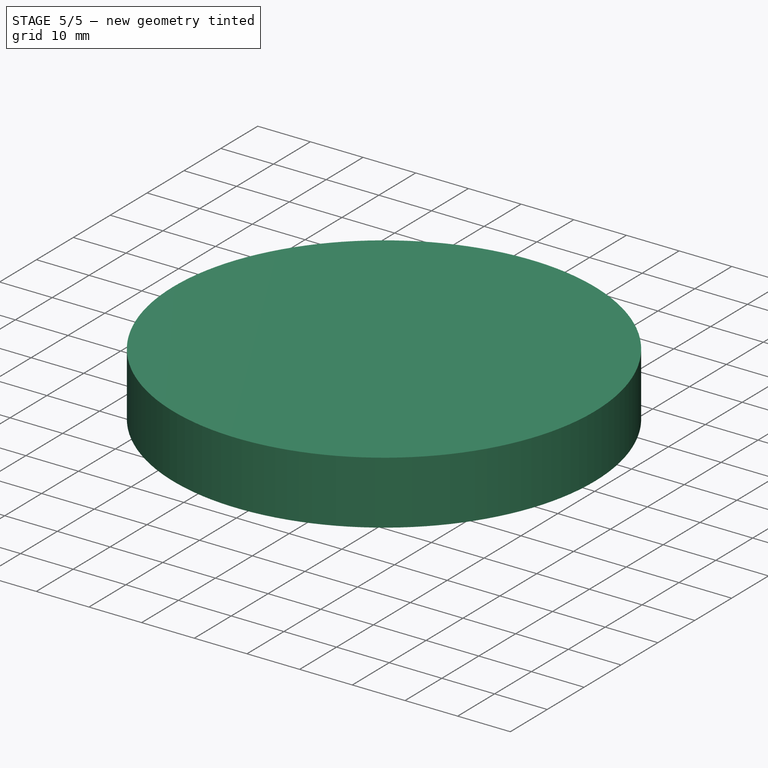
[diagram: stage 5 of 5 — iso view after this stage's code; geometry added in this stage tinted green]
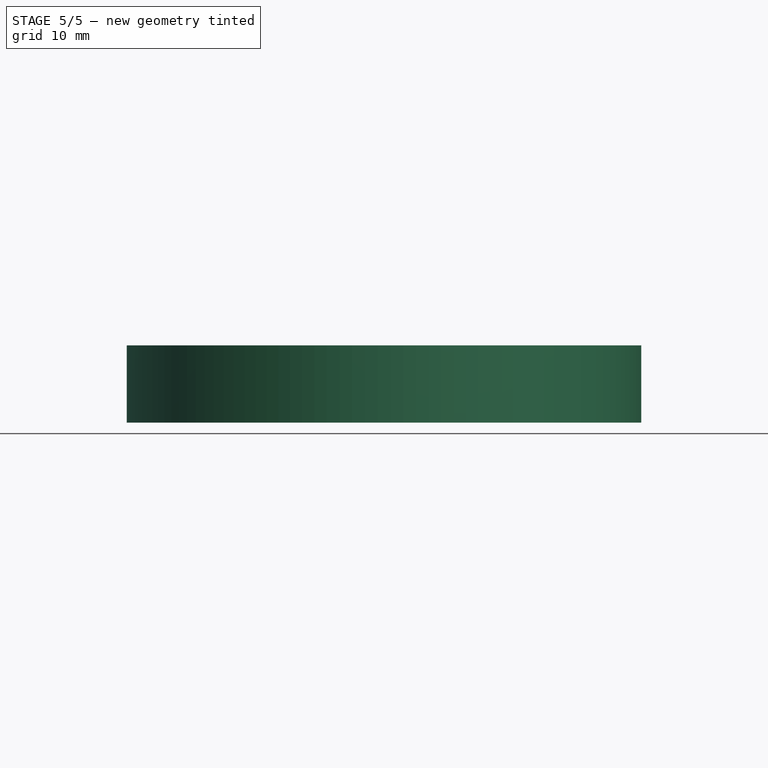
[diagram: stage 5 of 5 — front view after this stage's code; geometry added in this stage tinted green]
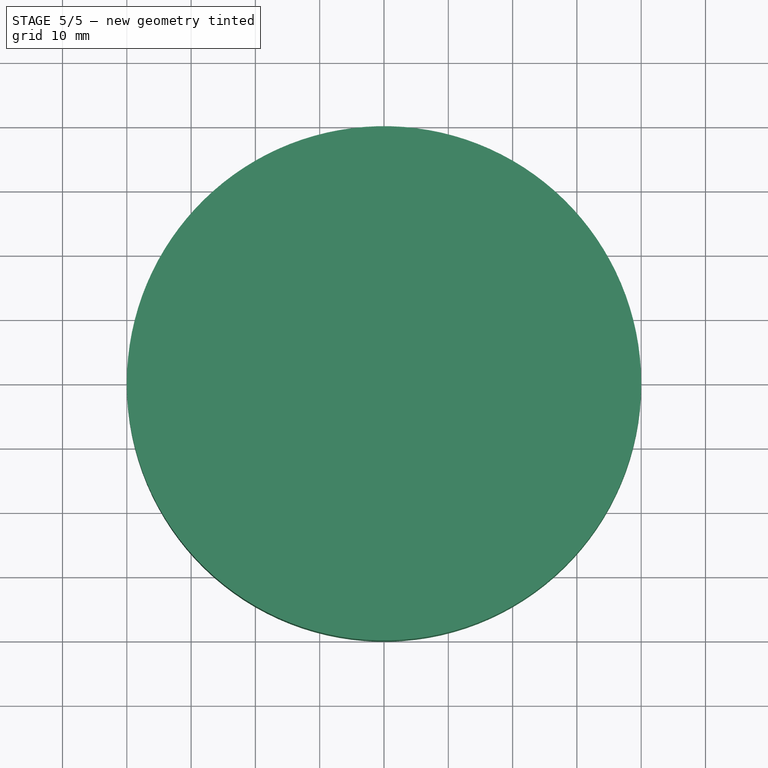
[diagram: stage 5 of 5 — top view after this stage's code; geometry added in this stage tinted green]
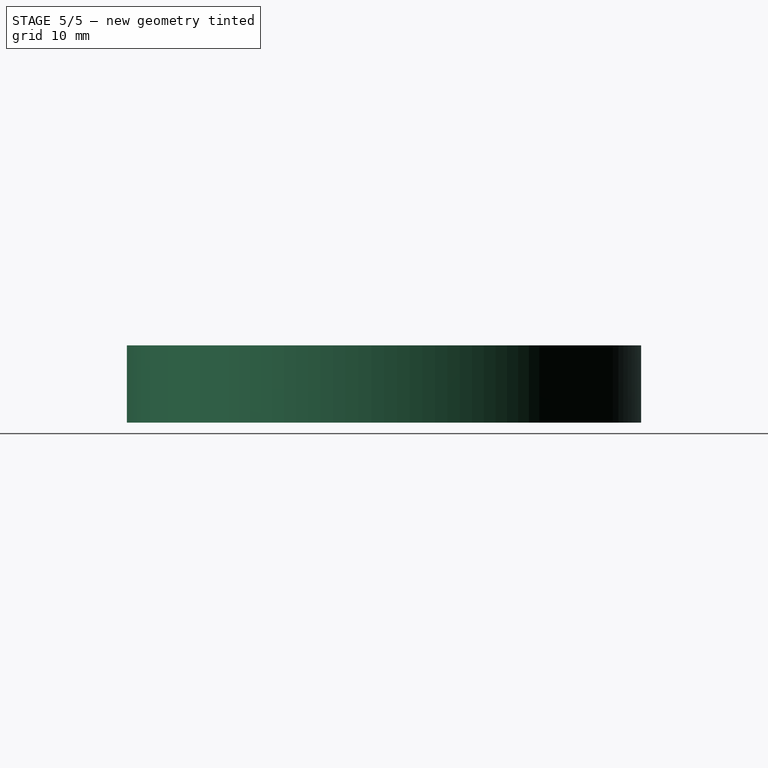
[diagram: stage 5 of 5 — right view after this stage's code; geometry added in this stage tinted green]
FEATURE [PartDesign::PolarPattern] PolarPattern
  Angle = 360
  Axis = -> Z_Axis002
  BaseFeature = -> Revolution001
  Mode = 0
  Occurrences = 36
  Offset = 120
  Placement = pos=(0,0,0) rot=(1,0,0;1.5708rad)
  Suppressed = false
  TransformMode = 1
FEATURE [PartDesign::Body] Body001
  AllowCompound = true
  Group = -> [Sketch002,Revolution001,PolarPattern]
  Origin = -> Origin002
  Tip = -> PolarPattern
FEATURE [Sketcher::SketchObject] Sketch003
  ArcFitTolerance = 1e-06
  AttachmentSupport = -> [XZ_Plane003]
  FullyConstrained = true
  MakeInternals = false
  MapMode = 5
  Placement = pos=(0,0,0) rot=(1,0,0;1.5708rad)
  sketch-geometry (9):
    g0: LineSegment StartX=0 StartY=12 StartZ=0 EndX=0 EndY=6 EndZ=0
    g1: LineSegment StartX=40 StartY=0 StartZ=0 EndX=40 EndY=12 EndZ=0
    g2: LineSegment StartX=40 StartY=12 StartZ=0 EndX=0 EndY=12 EndZ=0
    g3: LineSegment [constr] StartX=38 StartY=6 StartZ=0 EndX=38 EndY=0 EndZ=0
    g4: LineSegment StartX=38 StartY=0 StartZ=0 EndX=40 EndY=0 EndZ=0
    g5: LineSegment StartX=0 StartY=6 StartZ=0 EndX=38 EndY=6 EndZ=0
    g6: ArcOfCircle CenterX=37 CenterY=2.5 CenterZ=0 NormalX=0 NormalY=0 NormalZ=1 AngleXU=0 Radius=1.5875 StartAngle=5.39384 EndAngle=7.17253
    g7: LineSegment StartX=38 StartY=3.73295 StartZ=0 EndX=38 EndY=6 EndZ=0
    g8: LineSegment StartX=38 StartY=1.26705 StartZ=0 EndX=38 EndY=0 EndZ=0
  constraints (27):
    c: Coincident(g1,g2)
    c: Coincident(g2,g0)
    c: Vertical(g0)
    c: Vertical(g1)
    c: Horizontal(g2)
    c: PointOnObject(g0,g-2)
    c: Coincident(g3,g4)
    c: Horizontal(g4)
    c: Vertical(g3)
    c: PointOnObject(g3,g-1)
    c: Coincident(g5,g0)
    c: Coincident(g5,g3)
    c: Horizontal(g5)
    c: Coincident(g1,g4)
    c: DistanceX(g-1,g3) = 38
    c: Distance(g3,g3) = 6
    c: DistanceY(g1,g1) = 12
    c: Distance(g4,g4) = 2
    c: PointOnObject(g6,g3)
    c: PointOnObject(g6,g3)
    c: DistanceY(g-1,g6) = 2.5
    c: Radius(g6) = 1.5875
    c: Coincident(g7,g6)
    c: Coincident(g7,g3)
    c: Coincident(g8,g6)
    c: Coincident(g8,g3)
    c: DistanceX(g-1,g6) = 37
FEATURE [PartDesign::Revolution] Revolution002
  Angle = 360
  Angle2 = 60
  Axis = (0,2e-16,1)
  Base = (0,0,0)
  Placement = pos=(0,0,0) rot=(1,0,0;1.5708rad)
  Profile = -> Sketch003
  ReferenceAxis = -> Sketch003 [V_Axis]
  Reversed = true
  Suppressed = false
  Type = 0
FEATURE [Sketcher::SketchObject] Sketch005
  ArcFitTolerance = 1e-06
  AttachmentOffset = pos=(37,0,0) rot=(0,0,1;0rad)
  AttachmentSupport = -> [XZ_Plane005]
  FullyConstrained = true
  MakeInternals = false
  MapMode = 5
  Placement = pos=(37,0,0) rot=(1,0,0;1.5708rad)
  sketch-geometry (2):
    g0: ArcOfCircle CenterX=0 CenterY=2.5 CenterZ=0 NormalX=0 NormalY=0 NormalZ=1 AngleXU=0 Radius=1.5875 StartAngle=4.71239 EndAngle=7.85398
    g1: LineSegment StartX=5e-16 StartY=4.0875 StartZ=0 EndX=5e-16 EndY=0.9125 EndZ=0
  constraints (7):
    c: Coincident(g1,g0)
    c: Coincident(g1,g0)
    c: Vertical(g1)
    c: PointOnObject(g0,g1)
    c: Distance(g0,g-1) = 2.5
    c: PointOnObject(g0,g-2)
    c: Radius(g0) = 1.5875
FEATURE [PartDesign::Revolution] Revolution004
  Angle = 360
  Angle2 = 60
  Axis = (0,2e-16,1)
  Base = (37,0,0)
  Placement = pos=(0,0,0) rot=(1,0,0;1.5708rad)
  Profile = -> Sketch005
  ReferenceAxis = -> Sketch005 [V_Axis]
  Reversed = true
  Suppressed = false
  Type = 0
FEATURE [PartDesign::PolarPattern] PolarPattern001
  Angle = 360
  Axis = -> Z_Axis005
  BaseFeature = -> Revolution004
  Mode = 0
  Occurrences = 36
  Offset = 120
  Placement = pos=(0,0,0) rot=(1,0,0;1.5708rad)
  Suppressed = false
  TransformMode = 1
FEATURE [PartDesign::Body] Body004
  AllowCompound = true
  Group = -> [Sketch005,Revolution004,PolarPattern001]
  Origin = -> Origin005
  Tip = -> PolarPattern001
FEATURE [PartDesign::Boolean] Boolean
  BaseFeature = -> Revolution003
  Group = -> [Body001]
  Suppressed = false
  Type = 1
  UsePlacement = true
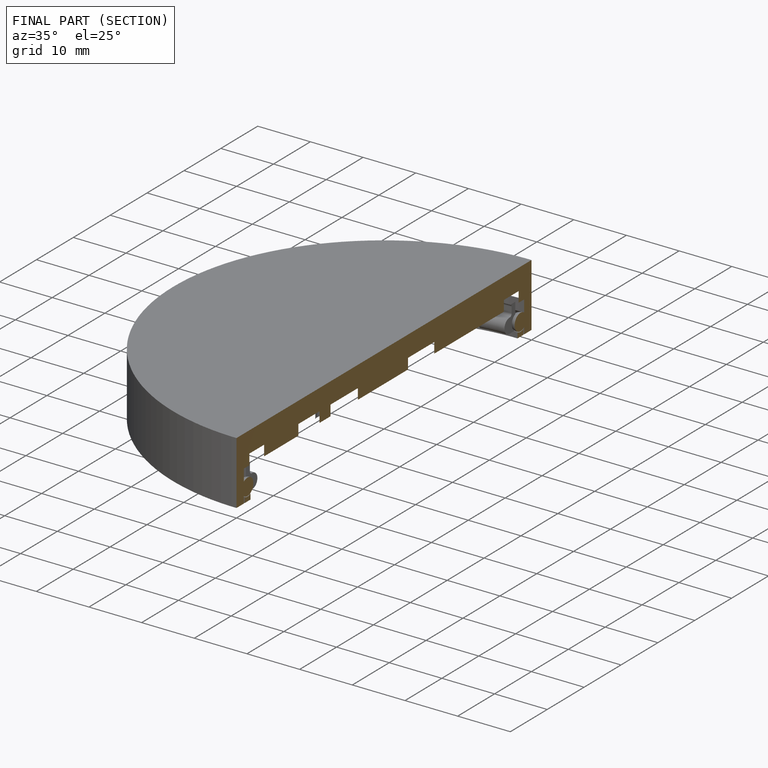
[diagram: finished part — half-section view (interior)]
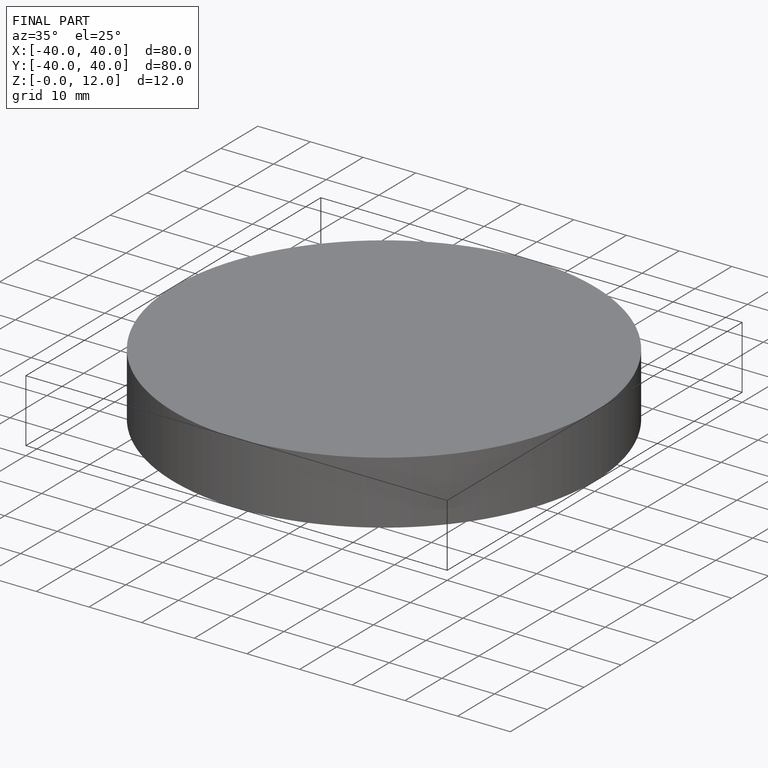
[diagram: finished part — iso view with bounding-box wireframe]
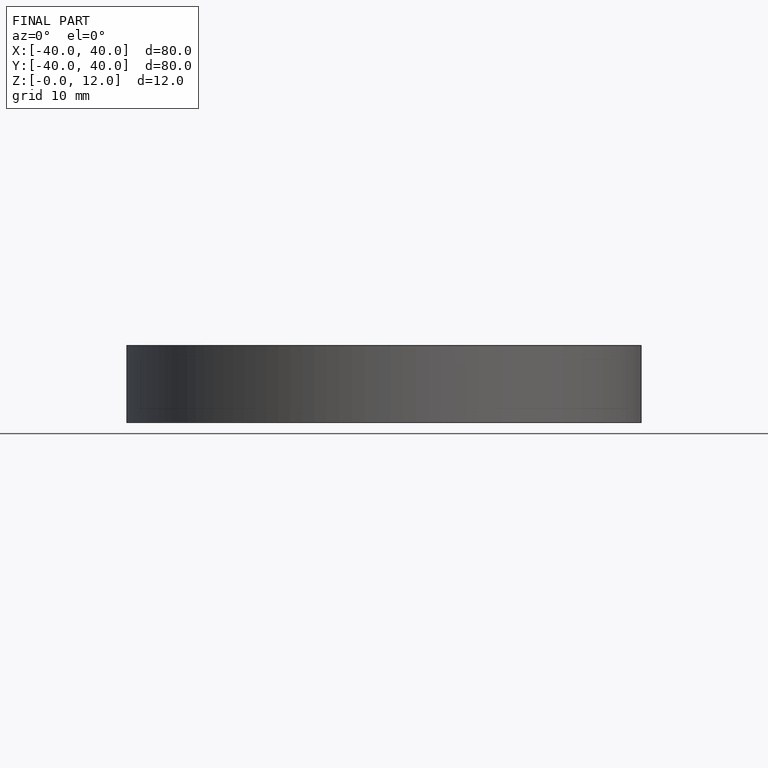
[diagram: finished part — front view with bounding-box wireframe]
